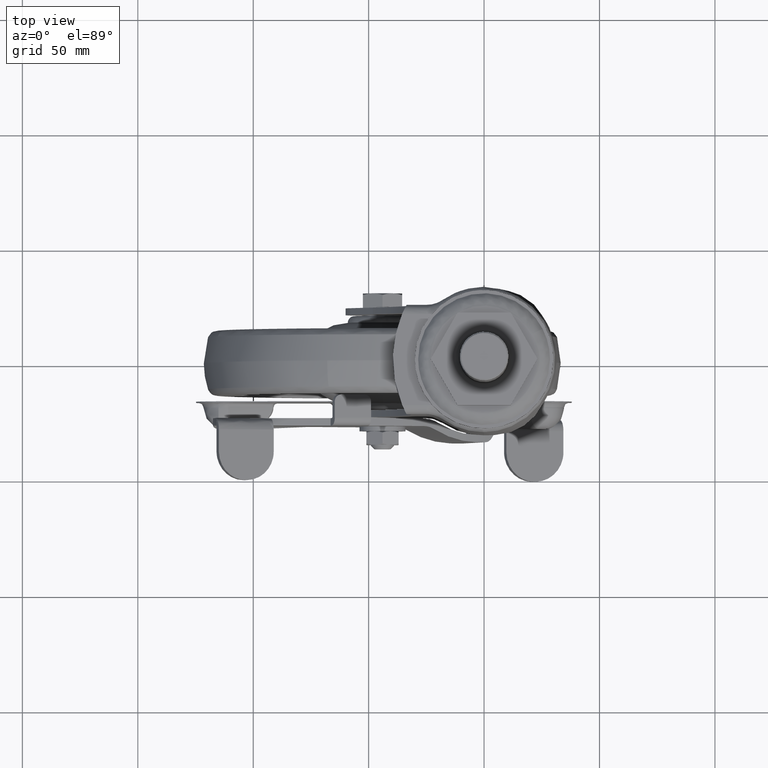
[diagram: clean part render]
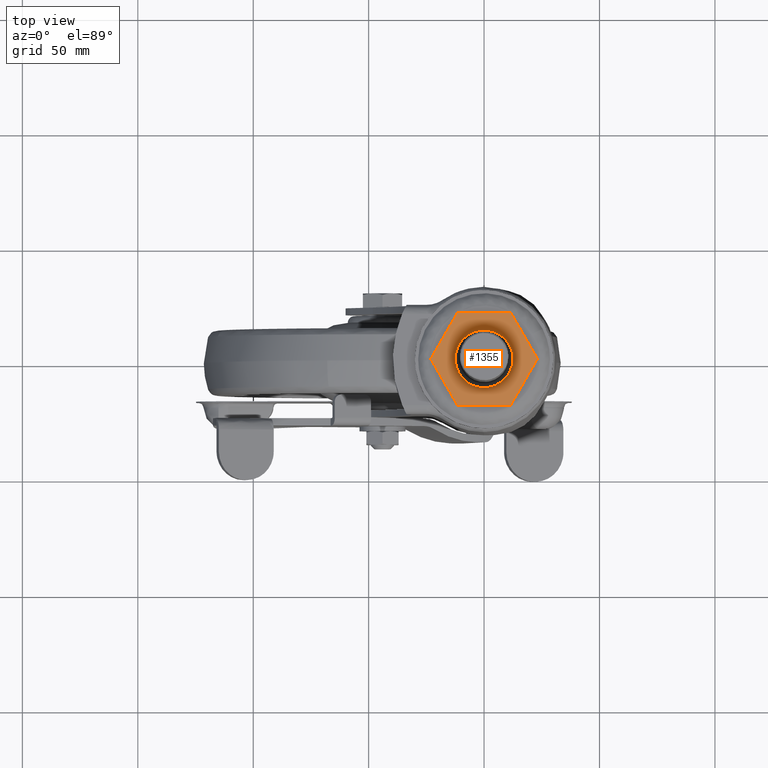
[diagram: same view with one face highlighted and labeled with its STEP entity id]
A machine part, top view. The second image highlights one B-rep face of the part: STEP entity #1355.
In plain terms, the highlighted face is a freeform B-spline surface patch.
Its self-contained STEP definition (entity closure, byte-faithful):
#1166=CARTESIAN_POINT('',(-11.547327000000100,-20.0,4.899999999999900));
#1167=VERTEX_POINT('',#1166);
#1168=CARTESIAN_POINT('',(-23.094332000000001,0.0,4.899999999999900));
#1169=VERTEX_POINT('',#1168);
#1170=CARTESIAN_POINT('',(-11.547327000000100,-20.0,4.899999999999900));
#1171=CARTESIAN_POINT('',(-23.094332000000001,0.0,4.899999999999900));
#1172=QUASI_UNIFORM_CURVE('',1,(#1170,#1171),.UNSPECIFIED.,.F.,.U.);
#1173=EDGE_CURVE('',#1167,#1169,#1172,.T.);
#1194=CARTESIAN_POINT('',(11.546683999999960,-20.0,4.899999999999900));
#1195=VERTEX_POINT('',#1194);
#1196=CARTESIAN_POINT('',(11.546683999999960,-20.0,4.899999999999900));
#1197=CARTESIAN_POINT('',(-11.547327000000100,-20.0,4.899999999999900));
#1198=QUASI_UNIFORM_CURVE('',1,(#1196,#1197),.UNSPECIFIED.,.F.,.U.);
#1199=EDGE_CURVE('',#1195,#1167,#1198,.T.);
#1216=CARTESIAN_POINT('',(23.093689000000101,0.0,4.899999999999900));
#1217=VERTEX_POINT('',#1216);
#1218=CARTESIAN_POINT('',(23.093689000000101,0.0,4.899999999999900));
#1219=CARTESIAN_POINT('',(11.546683999999960,-20.0,4.899999999999900));
#1220=QUASI_UNIFORM_CURVE('',1,(#1218,#1219),.UNSPECIFIED.,.F.,.U.);
#1221=EDGE_CURVE('',#1217,#1195,#1220,.T.);
#1238=CARTESIAN_POINT('',(11.546683999999960,20.0,4.899999999999900));
#1239=VERTEX_POINT('',#1238);
#1240=CARTESIAN_POINT('',(11.546683999999960,20.0,4.899999999999900));
#1241=CARTESIAN_POINT('',(23.093689000000101,0.0,4.899999999999900));
#1242=QUASI_UNIFORM_CURVE('',1,(#1240,#1241),.UNSPECIFIED.,.F.,.U.);
#1243=EDGE_CURVE('',#1239,#1217,#1242,.T.);
#1260=CARTESIAN_POINT('',(-11.547327000000100,20.0,4.899999999999900));
#1261=VERTEX_POINT('',#1260);
#1262=CARTESIAN_POINT('',(-11.547327000000100,20.0,4.899999999999900));
#1263=CARTESIAN_POINT('',(11.546683999999960,20.0,4.899999999999900));
#1264=QUASI_UNIFORM_CURVE('',1,(#1262,#1263),.UNSPECIFIED.,.F.,.U.);
#1265=EDGE_CURVE('',#1261,#1239,#1264,.T.);
#1282=CARTESIAN_POINT('',(-23.094332000000001,0.0,4.899999999999900));
#1283=CARTESIAN_POINT('',(-11.547327000000100,20.0,4.899999999999900));
#1284=QUASI_UNIFORM_CURVE('',1,(#1282,#1283),.UNSPECIFIED.,.F.,.U.);
#1285=EDGE_CURVE('',#1169,#1261,#1284,.T.);
#1293=CARTESIAN_POINT('',(-25.401423559428661,-21.997999922472239,4.899999999999920));
#1294=CARTESIAN_POINT('',(25.400781798288019,-21.997999922472239,4.899999999999920));
#1295=CARTESIAN_POINT('',(-25.401423559428661,21.998000995355842,4.899999999999920));
#1296=CARTESIAN_POINT('',(25.400781798288019,21.998000995355842,4.899999999999920));
#1297=B_SPLINE_SURFACE_WITH_KNOTS('',1,1,((#1293,#1295),(#1294,#1296)),.UNSPECIFIED.,.F.,.F.,.U.,(2,2),(2,2),(0.0,50.802205357716680),(0.0,43.996000917828077),.UNSPECIFIED.);
#1298=ORIENTED_EDGE('',*,*,#1285,.F.);
#1299=ORIENTED_EDGE('',*,*,#1173,.F.);
#1300=ORIENTED_EDGE('',*,*,#1199,.F.);
#1301=ORIENTED_EDGE('',*,*,#1221,.F.);
#1302=ORIENTED_EDGE('',*,*,#1243,.F.);
#1303=ORIENTED_EDGE('',*,*,#1265,.F.);
#1304=EDGE_LOOP('',(#1298,#1299,#1300,#1301,#1302,#1303));
#1305=FACE_OUTER_BOUND('',#1304,.T.);
#1306=CARTESIAN_POINT('',(-12.499999992200740,2.752257E-014,4.899999999999920));
#1307=VERTEX_POINT('',#1306);
#1308=CARTESIAN_POINT('',(12.499999992200740,2.847873E-014,4.899999999999920));
#1309=VERTEX_POINT('',#1308);
#1310=CARTESIAN_POINT('',(-12.499999992200740,2.752257E-014,4.899999999999920));
#1311=CARTESIAN_POINT('',(-12.500108985303710,0.869255122434359,4.899999999999920));
#1312=CARTESIAN_POINT('',(-12.307294664489660,2.710003800707665,4.899999999999923));
#1313=CARTESIAN_POINT('',(-11.468557928699770,5.197922482012288,4.899999999999916));
#1314=CARTESIAN_POINT('',(-10.240313820461269,7.275492305235130,4.899999999999915));
#1315=CARTESIAN_POINT('',(-8.710162111164486,9.071712799200732,4.899999999999900));
#1316=CARTESIAN_POINT('',(-6.742051939109855,10.646962487661369,4.899999999999956));
#1317=CARTESIAN_POINT('',(-4.199211620819632,11.888089019061930,4.899999999999878));
#1318=CARTESIAN_POINT('',(-1.741375874789162,12.455742772294240,4.900000000000031));
#1319=CARTESIAN_POINT('',(0.922896003797367,12.553933038448790,4.899999999999847));
#1320=CARTESIAN_POINT('',(3.567153955572384,12.111978533450930,4.899999999999936));
#1321=CARTESIAN_POINT('',(6.021071408643382,11.041967798242760,4.899999999999919));
#1322=CARTESIAN_POINT('',(7.965866127881669,9.707558391961628,4.899999999999982));
#1323=CARTESIAN_POINT('',(9.333855136750442,8.389059092243139,4.899999999999881));
#1324=CARTESIAN_POINT('',(10.605674198662230,6.717455662644871,4.899999999999924));
#1325=CARTESIAN_POINT('',(11.526060686428670,4.995615254864198,4.899999999999936));
#1326=CARTESIAN_POINT('',(12.297988457586230,2.658752585016399,4.899999999999912));
#1327=CARTESIAN_POINT('',(12.500271827799709,1.022682713916848,4.899999999999900));
#1328=CARTESIAN_POINT('',(12.499999992200740,2.847873E-014,4.899999999999920));
#1329=B_SPLINE_CURVE_WITH_KNOTS('',3,(#1310,#1311,#1312,#1313,#1314,#1315,#1316,#1317,#1318,#1319,#1320,#1321,#1322,#1323,#1324,#1325,#1326,#1327,#1328),.UNSPECIFIED.,.F.,.U.,(4,1,1,1,1,1,1,1,1,1,1,1,1,1,1,1,4),(0.000000932378150,2.607769215017882,5.522345481563875,7.823309356415553,9.817545600871000,12.578737039123400,15.340028547193420,18.254659187471830,20.095186626666418,23.316520276301361,26.231161225251199,28.072014532157809,30.373036788027349,31.907044103940809,34.361408418030059,36.202193432041298,39.270154559907922),.UNSPECIFIED.);
#1330=EDGE_CURVE('',#1307,#1309,#1329,.T.);
#1331=ORIENTED_EDGE('',*,*,#1330,.T.);
#1332=CARTESIAN_POINT('',(12.499999992200740,2.847873E-014,4.899999999999920));
#1333=CARTESIAN_POINT('',(12.500651910926200,-1.278393160550038,4.899999999999918));
#1334=CARTESIAN_POINT('',(12.175441122085280,-3.374363428890042,4.899999999999937));
#1335=CARTESIAN_POINT('',(10.879975598206491,-6.396849923575437,4.899999999999916));
#1336=CARTESIAN_POINT('',(9.081122553635231,-8.791820136636662,4.899999999999921));
#1337=CARTESIAN_POINT('',(6.697742737335243,-10.674956170218559,4.899999999999947));
#1338=CARTESIAN_POINT('',(4.009994580785356,-11.966535288107940,4.899999999999914));
#1339=CARTESIAN_POINT('',(1.385100883463373,-12.522337670394361,4.899999999999884));
#1340=CARTESIAN_POINT('',(-0.974435750141532,-12.507386099903520,4.899999999999957));
#1341=CARTESIAN_POINT('',(-2.949626289782973,-12.202132383879430,4.899999999999904));
#1342=CARTESIAN_POINT('',(-4.708394244853111,-11.633038867222030,4.899999999999862));
#1343=CARTESIAN_POINT('',(-6.538825492728054,-10.711699707518560,4.900000000000000));
#1344=CARTESIAN_POINT('',(-8.378172973278408,-9.399520982798626,4.899999999999710));
#1345=CARTESIAN_POINT('',(-10.118537042631161,-7.502924864176227,4.900000000000004));
#1346=CARTESIAN_POINT('',(-11.334325512680779,-5.416441092439232,4.899999999999889));
#1347=CARTESIAN_POINT('',(-12.245486153061460,-2.965444187464882,4.899999999999976));
#1348=CARTESIAN_POINT('',(-12.500452757126579,-1.176106943290619,4.899999999999825));
#1349=CARTESIAN_POINT('',(-12.499999992200740,2.752257E-014,4.899999999999920));
#1350=B_SPLINE_CURVE_WITH_KNOTS('',3,(#1332,#1333,#1334,#1335,#1336,#1337,#1338,#1339,#1340,#1341,#1342,#1343,#1344,#1345,#1346,#1347,#1348,#1349),.UNSPECIFIED.,.F.,.U.,(4,1,1,1,1,1,1,1,1,1,1,1,1,1,1,4),(0.000000932382704,3.834938145434066,6.289308122935807,9.817545600873242,12.732192077165459,15.340028547195010,18.714843574858399,20.708842157112059,22.396107443807111,24.697171547659241,26.231161225251650,28.532222998503361,31.446825680229061,33.901229570549702,35.742001858782942,39.270154559907887),.UNSPECIFIED.);
#1351=EDGE_CURVE('',#1309,#1307,#1350,.T.);
#1352=ORIENTED_EDGE('',*,*,#1351,.T.);
#1353=EDGE_LOOP('',(#1331,#1352));
#1354=FACE_BOUND('',#1353,.T.);
#1355=ADVANCED_FACE('',(#1305,#1354),#1297,.T.);